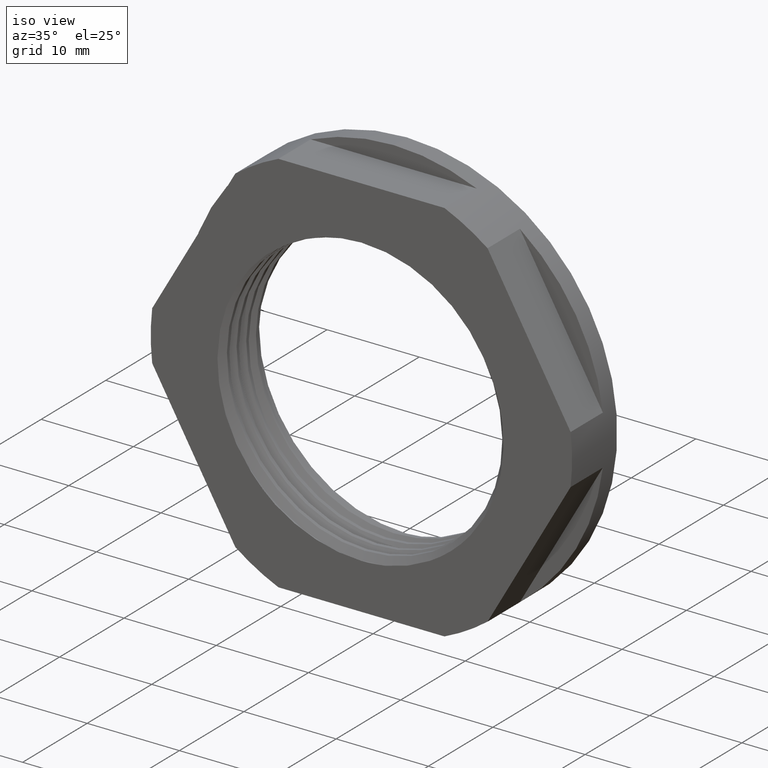
[diagram: clean part render]
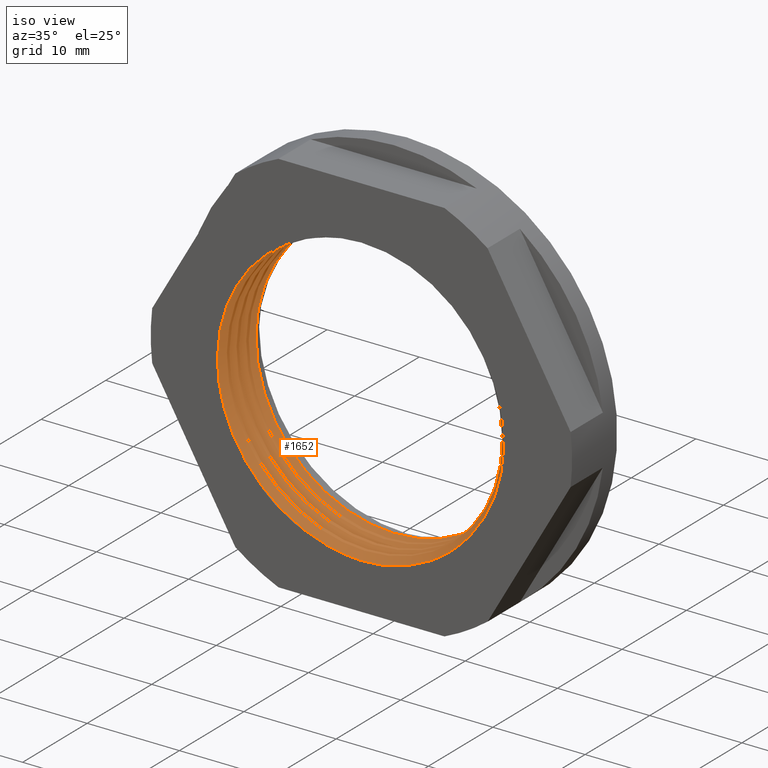
[diagram: same view with one face highlighted and labeled with its STEP entity id]
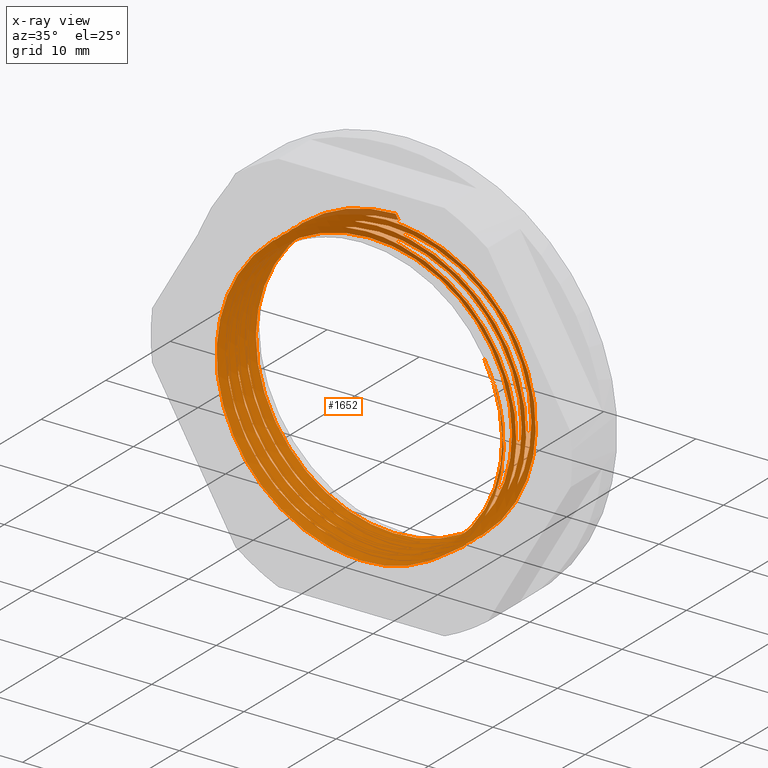
[diagram: x-ray of the same camera — body ghosted, the highlighted face saturated]
A machine part, iso view. The second image highlights one B-rep face of the part: STEP entity #1652.
The next image is the same camera in x-ray: the body ghosted, the highlighted face saturated — about 2% of this face is hidden behind the body in this view.
In plain terms, the highlighted face is a freeform B-spline surface patch.
Its self-contained STEP definition (entity closure, byte-faithful):
#3 = CARTESIAN_POINT ( 'NONE',  ( 0.0000000000000000000, -17.55188021535170200, 115.2000000000000300 ) ) ;
#7 = CARTESIAN_POINT ( 'NONE',  ( -1.861463134703979900E-015, -16.80188021535170900, 84.79999999999999700 ) ) ;
#8 = CARTESIAN_POINT ( 'NONE',  ( 1.628501233637470100E-011, -17.26376043070362000, 84.00000000000001400 ) ) ;
#11 = CARTESIAN_POINT ( 'NONE',  ( -1.861463134703979900E-015, -19.80188021535170200, 84.79999999999999700 ) ) ;
#21 = CARTESIAN_POINT ( 'NONE',  ( -1.861463134703979900E-015, -21.30188021535164800, 84.79999999999999700 ) ) ;
#24 = CARTESIAN_POINT ( 'NONE',  ( -1.959434878635765100E-015, -20.26376043070340000, 84.00000000000000000 ) ) ;
#27 = CARTESIAN_POINT ( 'NONE',  ( -1.861463134703979900E-015, -18.30188021535170200, 84.79999999999999700 ) ) ;
#34 = CARTESIAN_POINT ( 'NONE',  ( -1.959434878635765100E-015, -16.51376043070339300, 116.0000000000000000 ) ) ;
#44 = CARTESIAN_POINT ( 'NONE',  ( 0.0000000000000000000, -19.05188021535170200, 115.2000000000000300 ) ) ;
#45 = CARTESIAN_POINT ( 'NONE',  ( -1.959434878635765100E-015, -21.76376043070334600, 84.00000000000000000 ) ) ;
#46 = CARTESIAN_POINT ( 'NONE',  ( 4.653657836759944700E-016, -16.05188021535170500, 115.2000000000000300 ) ) ;
#48 = CARTESIAN_POINT ( 'NONE',  ( 0.0000000000000000000, -18.01376043070340000, 116.0000000000000000 ) ) ;
#54 = CARTESIAN_POINT ( 'NONE',  ( 0.0000000000000000000, -21.01376043070340000, 116.0000000000000000 ) ) ;
#58 = CARTESIAN_POINT ( 'NONE',  ( 2.559201226149841400, -21.80000000000000100, 84.20599831948619900 ) ) ;
#61 = CARTESIAN_POINT ( 'NONE',  ( 1.976889218764930200E-011, -18.76376043070366600, 84.00000000000000000 ) ) ;
#62 = CARTESIAN_POINT ( 'NONE',  ( 0.0000000000000000000, -19.51376043070340700, 116.0000000000000000 ) ) ;
#63 = CARTESIAN_POINT ( 'NONE',  ( 13.22892858177964300, -21.80000000000000100, 107.4856829066007000 ) ) ;
#64 = CARTESIAN_POINT ( 'NONE',  ( -13.85640646055214600, -21.26376043070410300, 108.0000000000006700 ) ) ;
#65 = CARTESIAN_POINT ( 'NONE',  ( -1.861463134703979900E-015, -19.80188021535170200, 84.79999999999999700 ) ) ;
#66 = CARTESIAN_POINT ( 'NONE',  ( 13.16358613752344900, -20.05188021535169400, 92.39999999999999100 ) ) ;
#67 = CARTESIAN_POINT ( 'NONE',  ( -18.47520861406951900, -21.38876043070409600, 100.0000000000000000 ) ) ;
#69 = CARTESIAN_POINT ( 'NONE',  ( -1.959434878635765100E-015, -16.51376043070339300, 116.0000000000000000 ) ) ;
#72 = CARTESIAN_POINT ( 'NONE',  ( 1.628501233637470100E-011, -17.26376043070362000, 84.00000000000001400 ) ) ;
#75 = CARTESIAN_POINT ( 'NONE',  ( 17.55144818336461300, -20.17688021535168000, 100.0000000000000100 ) ) ;
#76 = CARTESIAN_POINT ( 'NONE',  ( 0.0000000000000000000, -20.55188021535170200, 115.2000000000000300 ) ) ;
#77 = CARTESIAN_POINT ( 'NONE',  ( 8.775724091682306500, -19.92688021535169100, 84.80000000000002600 ) ) ;
#80 = CARTESIAN_POINT ( 'NONE',  ( -18.47520861406806200, -16.88876043070339600, 100.0000000000000100 ) ) ;
#81 = CARTESIAN_POINT ( 'NONE',  ( -9.237604307028606200, -17.13876043070355600, 83.99999999999057800 ) ) ;
#83 = CARTESIAN_POINT ( 'NONE',  ( -13.85640646055214600, -21.51376043070410300, 91.99999999999936100 ) ) ;
#87 = CARTESIAN_POINT ( 'NONE',  ( 13.16358613752347000, -20.30188021535169400, 107.5999999999999900 ) ) ;
#88 = CARTESIAN_POINT ( 'NONE',  ( 0.0000000000000000000, -20.55188021535170200, 115.2000000000000300 ) ) ;
#91 = CARTESIAN_POINT ( 'NONE',  ( -13.85640646055105800, -16.76376043070342800, 108.0000000000000400 ) ) ;
#96 = CARTESIAN_POINT ( 'NONE',  ( -9.237604307034031200, -16.63876043070340700, 116.0000000000001700 ) ) ;
#98 = CARTESIAN_POINT ( 'NONE',  ( 8.775724091682306500, -20.42688021535167300, 115.1999999999999300 ) ) ;
#100 = CARTESIAN_POINT ( 'NONE',  ( -9.237604307034759500, -21.63876043070409600, 83.99999999999874900 ) ) ;
#103 = CARTESIAN_POINT ( 'NONE',  ( -1.959434878635765100E-015, -21.76376043070334600, 84.00000000000000000 ) ) ;
#105 = CARTESIAN_POINT ( 'NONE',  ( -9.237604307034759500, -21.13876043070411700, 116.0000000000014400 ) ) ;
#110 = CARTESIAN_POINT ( 'NONE',  ( 0.0000000000000000000, -21.01376043070340000, 116.0000000000000000 ) ) ;
#111 = CARTESIAN_POINT ( 'NONE',  ( -13.85640646055105800, -17.01376043070342800, 91.99999999999998600 ) ) ;
#116 = CARTESIAN_POINT ( 'NONE',  ( 1.976889218764930200E-011, -18.76376043070366600, 84.00000000000000000 ) ) ;
#122 = CARTESIAN_POINT ( 'NONE',  ( 18.47520861406857100, -19.13876043070368400, 100.0000000000000300 ) ) ;
#129 = CARTESIAN_POINT ( 'NONE',  ( 13.85640646055143000, -19.01376043070367300, 91.99999999999977300 ) ) ;
#130 = CARTESIAN_POINT ( 'NONE',  ( 9.237604307034285300, -19.38876043070367000, 116.0000000000006300 ) ) ;
#142 = CARTESIAN_POINT ( 'NONE',  ( 9.237604307040872000, -18.88876043070386500, 84.00000000001102800 ) ) ;
#143 = CARTESIAN_POINT ( 'NONE',  ( 13.85640646055143000, -19.26376043070367700, 108.0000000000002400 ) ) ;
#144 = CARTESIAN_POINT ( 'NONE',  ( 0.0000000000000000000, -19.51376043070340700, 116.0000000000000000 ) ) ;
#150 = CARTESIAN_POINT ( 'NONE',  ( 8.775724091682313600, -16.92688021535168700, 84.79999999999996900 ) ) ;
#167 = CARTESIAN_POINT ( 'NONE',  ( -1.861463134703979900E-015, -16.80188021535170900, 84.79999999999999700 ) ) ;
#168 = CARTESIAN_POINT ( 'NONE',  ( -1.861463134703979900E-015, -21.30188021535164800, 84.79999999999999700 ) ) ;
#169 = CARTESIAN_POINT ( 'NONE',  ( 8.775724091682290500, -21.42688021535167300, 84.80000000000002600 ) ) ;
#170 = CARTESIAN_POINT ( 'NONE',  ( 13.16358613752343000, -21.55188021535163000, 92.40000000000002000 ) ) ;
#181 = CARTESIAN_POINT ( 'NONE',  ( 13.22892858177964300, -21.80000000000000100, 107.4856829066007000 ) ) ;
#182 = CARTESIAN_POINT ( 'NONE',  ( 17.50766593854031000, -21.67563296086966000, 99.92416692749495200 ) ) ;
#192 = CARTESIAN_POINT ( 'NONE',  ( 18.47520861406811900, -20.63876043070344600, 100.0000000000000300 ) ) ;
#195 = CARTESIAN_POINT ( 'NONE',  ( 9.237604307040594900, -17.38876043070466800, 84.00000000000746100 ) ) ;
#196 = CARTESIAN_POINT ( 'NONE',  ( -1.959434878635765100E-015, -20.26376043070340000, 84.00000000000000000 ) ) ;
#199 = CARTESIAN_POINT ( 'NONE',  ( -1.959434878635765100E-015, -20.26376043070340000, 84.00000000000000000 ) ) ;
#200 = CARTESIAN_POINT ( 'NONE',  ( 9.237604307034059700, -20.38876043070344900, 83.99999999999995700 ) ) ;
#202 = CARTESIAN_POINT ( 'NONE',  ( 13.85640646055275700, -17.76376043070455800, 108.0000000000010100 ) ) ;
#203 = CARTESIAN_POINT ( 'NONE',  ( -9.237604307034274600, -19.63876043070363800, 116.0000000000005800 ) ) ;
#204 = CARTESIAN_POINT ( 'NONE',  ( 0.0000000000000000000, -21.01376043070340000, 116.0000000000000000 ) ) ;
#209 = CARTESIAN_POINT ( 'NONE',  ( 0.0000000000000000000, -17.55188021535170200, 115.2000000000000300 ) ) ;
#211 = CARTESIAN_POINT ( 'NONE',  ( 17.55144818336462700, -17.17688021535168700, 100.0000000000000100 ) ) ;
#212 = CARTESIAN_POINT ( 'NONE',  ( -13.85640646055142100, -20.01376043070366600, 91.99999999999977300 ) ) ;
#213 = CARTESIAN_POINT ( 'NONE',  ( 13.16358613752348100, -17.30188021535170200, 107.6000000000000100 ) ) ;
#214 = CARTESIAN_POINT ( 'NONE',  ( -13.85640646055142100, -19.76376043070366600, 108.0000000000002400 ) ) ;
#215 = CARTESIAN_POINT ( 'NONE',  ( 13.85640646055109400, -20.51376043070344900, 91.99999999999995700 ) ) ;
#218 = CARTESIAN_POINT ( 'NONE',  ( 1.628501233637470100E-011, -17.26376043070362000, 84.00000000000001400 ) ) ;
#220 = CARTESIAN_POINT ( 'NONE',  ( -9.237604307034274600, -20.13876043070362700, 83.99999999999958800 ) ) ;
#226 = CARTESIAN_POINT ( 'NONE',  ( 9.237604307034059700, -20.88876043070342800, 116.0000000000002600 ) ) ;
#227 = CARTESIAN_POINT ( 'NONE',  ( 0.0000000000000000000, -19.51376043070340700, 116.0000000000000000 ) ) ;
#229 = CARTESIAN_POINT ( 'NONE',  ( 13.85640646055109400, -20.76376043070345300, 108.0000000000000400 ) ) ;
#230 = CARTESIAN_POINT ( 'NONE',  ( 18.47520861407033300, -17.63876043070456500, 100.0000000000000300 ) ) ;
#231 = CARTESIAN_POINT ( 'NONE',  ( 13.16358613752346200, -17.05188021535170200, 92.39999999999999100 ) ) ;
#232 = CARTESIAN_POINT ( 'NONE',  ( 8.775724091682313600, -17.42688021535169800, 115.1999999999999300 ) ) ;
#233 = CARTESIAN_POINT ( 'NONE',  ( -18.47520861406854900, -19.88876043070362300, 100.0000000000000000 ) ) ;
#235 = CARTESIAN_POINT ( 'NONE',  ( 9.237604307035146800, -17.88876043070455100, 116.0000000000021600 ) ) ;
#236 = CARTESIAN_POINT ( 'NONE',  ( 0.0000000000000000000, -18.01376043070340000, 116.0000000000000000 ) ) ;
#241 = CARTESIAN_POINT ( 'NONE',  ( 13.85640646055275700, -17.51376043070455800, 91.99999999999900500 ) ) ;
#253 = VERTEX_POINT ( 'NONE', #62 ) ;
#262 = VERTEX_POINT ( 'NONE', #24 ) ;
#267 = VERTEX_POINT ( 'NONE', #34 ) ;
#269 = VERTEX_POINT ( 'NONE', #48 ) ;
#270 = VERTEX_POINT ( 'NONE', #8 ) ;
#271 = VERTEX_POINT ( 'NONE', #45 ) ;
#273 = VERTEX_POINT ( 'NONE', #61 ) ;
#275 = VERTEX_POINT ( 'NONE', #58 ) ;
#280 = VERTEX_POINT ( 'NONE', #27 ) ;
#291 = VERTEX_POINT ( 'NONE', #44 ) ;
#292 = VERTEX_POINT ( 'NONE', #3 ) ;
#293 = VERTEX_POINT ( 'NONE', #21 ) ;
#294 = VERTEX_POINT ( 'NONE', #11 ) ;
#303 = VERTEX_POINT ( 'NONE', #63 ) ;
#304 = VERTEX_POINT ( 'NONE', #46 ) ;
#312 = VERTEX_POINT ( 'NONE', #7 ) ;
#316 = VERTEX_POINT ( 'NONE', #54 ) ;
#322 = VERTEX_POINT ( 'NONE', #88 ) ;
#343 = EDGE_LOOP ( 'NONE', ( #423, #459, #427, #489, #449, #458, #483, #473, #472, #405, #404, #411, #402, #415, #548, #537, #511, #512 ) ) ;
#402 = ORIENTED_EDGE ( 'NONE', *, *, #1569, .F. ) ;
#404 = ORIENTED_EDGE ( 'NONE', *, *, #1578, .T. ) ;
#405 = ORIENTED_EDGE ( 'NONE', *, *, #1563, .T. ) ;
#411 = ORIENTED_EDGE ( 'NONE', *, *, #1528, .F. ) ;
#415 = ORIENTED_EDGE ( 'NONE', *, *, #1512, .F. ) ;
#423 = ORIENTED_EDGE ( 'NONE', *, *, #1579, .F. ) ;
#427 = ORIENTED_EDGE ( 'NONE', *, *, #1511, .T. ) ;
#449 = ORIENTED_EDGE ( 'NONE', *, *, #1661, .T. ) ;
#458 = ORIENTED_EDGE ( 'NONE', *, *, #1523, .T. ) ;
#459 = ORIENTED_EDGE ( 'NONE', *, *, #1575, .F. ) ;
#472 = ORIENTED_EDGE ( 'NONE', *, *, #1515, .T. ) ;
#473 = ORIENTED_EDGE ( 'NONE', *, *, #1544, .T. ) ;
#483 = ORIENTED_EDGE ( 'NONE', *, *, #1542, .T. ) ;
#489 = ORIENTED_EDGE ( 'NONE', *, *, #1545, .T. ) ;
#511 = ORIENTED_EDGE ( 'NONE', *, *, #1653, .F. ) ;
#512 = ORIENTED_EDGE ( 'NONE', *, *, #1539, .F. ) ;
#537 = ORIENTED_EDGE ( 'NONE', *, *, #1557, .F. ) ;
#548 = ORIENTED_EDGE ( 'NONE', *, *, #1568, .F. ) ;
#589 =( BOUNDED_CURVE ( )  B_SPLINE_CURVE ( 2, ( #69, #96, #91, #80, #111, #81, #72 ),
 .UNSPECIFIED., .F., .F. ) 
 B_SPLINE_CURVE_WITH_KNOTS ( ( 3, 2, 2, 3 ),
 ( -0.3037914459131592600, -0.2869165530796992100, -0.2700416602462391000, -0.2531667674127790500 ),
 .UNSPECIFIED. ) 
 CURVE ( )  GEOMETRIC_REPRESENTATION_ITEM ( )  RATIONAL_B_SPLINE_CURVE ( ( 0.9999999999999998900, 0.8660254037844388200, 0.9999999999999998900, 0.8660254037844388200, 0.9999999999999998900, 0.8660254037843024800, 1.000000000000136100 ) ) 
 REPRESENTATION_ITEM ( '' )  );
#590 =( BOUNDED_CURVE ( )  B_SPLINE_CURVE ( 2, ( #670, #661, #653, #671, #663, #636, #629 ),
 .UNSPECIFIED., .F., .T. ) 
 B_SPLINE_CURVE_WITH_KNOTS ( ( 3, 2, 2, 3 ),
 ( 0.0000000000000000000, 0.01602561006831384300, 0.03205122013662811000, 0.04807683020494184900 ),
 .UNSPECIFIED. ) 
 CURVE ( )  GEOMETRIC_REPRESENTATION_ITEM ( )  RATIONAL_B_SPLINE_CURVE ( ( 1.000000000000000000, 0.8660254037844389300, 1.000000000000000000, 0.8660254037844389300, 1.000000000000000000, 0.8660254037844389300, 1.000000000000000000 ) ) 
 REPRESENTATION_ITEM ( '' )  );
#591 =( BOUNDED_CURVE ( )  B_SPLINE_CURVE ( 2, ( #637, #650, #659, #639, #652, #627, #628 ),
 .UNSPECIFIED., .F., .T. ) 
 B_SPLINE_CURVE_WITH_KNOTS ( ( 3, 2, 2, 3 ),
 ( -0.09615954372078117100, -0.08013295935106458400, -0.06410637498134799700, -0.04807979061163163100 ),
 .UNSPECIFIED. ) 
 CURVE ( )  GEOMETRIC_REPRESENTATION_ITEM ( )  RATIONAL_B_SPLINE_CURVE ( ( 1.000000000000000000, 0.8660254037844389300, 1.000000000000000000, 0.8660254037844389300, 1.000000000000000000, 0.8660254037844389300, 1.000000000000000000 ) ) 
 REPRESENTATION_ITEM ( '' )  );
#592 =( BOUNDED_CURVE ( )  B_SPLINE_CURVE ( 2, ( #1416, #1404, #1395, #1380, #1421, #1407, #1397 ),
 .UNSPECIFIED., .F., .T. ) 
 B_SPLINE_CURVE_WITH_KNOTS ( ( 3, 2, 2, 3 ),
 ( -0.1442392593274778600, -0.1282126874585788600, -0.1121861155896801700, -0.09615954372078117100 ),
 .UNSPECIFIED. ) 
 CURVE ( )  GEOMETRIC_REPRESENTATION_ITEM ( )  RATIONAL_B_SPLINE_CURVE ( ( 1.000000000000000000, 0.8660254037844389300, 1.000000000000000000, 0.8660254037844389300, 1.000000000000000000, 0.8660254037844389300, 1.000000000000000000 ) ) 
 REPRESENTATION_ITEM ( '' )  );
#593 =( BOUNDED_CURVE ( )  B_SPLINE_CURVE ( 2, ( #699, #752, #773, #759, #746, #780, #776 ),
 .UNSPECIFIED., .F., .T. ) 
 B_SPLINE_CURVE_WITH_KNOTS ( ( 3, 2, 2, 3 ),
 ( -0.2884781811331433900, -0.2724516467666388000, -0.2564251124001341600, -0.2403985780336295700 ),
 .UNSPECIFIED. ) 
 CURVE ( )  GEOMETRIC_REPRESENTATION_ITEM ( )  RATIONAL_B_SPLINE_CURVE ( ( 1.000000000000000000, 0.8660254037844389300, 1.000000000000000000, 0.8660254037844389300, 1.000000000000000000, 0.8660254037844389300, 1.000000000000000000 ) ) 
 REPRESENTATION_ITEM ( '' )  );
#595 =( BOUNDED_CURVE ( )  B_SPLINE_CURVE ( 2, ( #110, #105, #64, #67, #83, #100, #103 ),
 .UNSPECIFIED., .F., .F. ) 
 B_SPLINE_CURVE_WITH_KNOTS ( ( 3, 2, 2, 3 ),
 ( 0.0000000000000000000, 0.01686664569126410800, 0.03373329138252866000, 0.05059993707379266400 ),
 .UNSPECIFIED. ) 
 CURVE ( )  GEOMETRIC_REPRESENTATION_ITEM ( )  RATIONAL_B_SPLINE_CURVE ( ( 1.000000000000000000, 0.8660254037844390400, 1.000000000000000000, 0.8660254037844390400, 1.000000000000000000, 0.8660254037844390400, 1.000000000000000000 ) ) 
 REPRESENTATION_ITEM ( '' )  );
#600 =( BOUNDED_CURVE ( )  B_SPLINE_CURVE ( 2, ( #65, #77, #66, #75, #87, #98, #76 ),
 .UNSPECIFIED., .F., .F. ) 
 B_SPLINE_CURVE_WITH_KNOTS ( ( 3, 2, 2, 3 ),
 ( -0.04807979061163163800, -0.03205319374108792100, -0.01602659687054366900, 0.0000000000000000000 ),
 .UNSPECIFIED. ) 
 CURVE ( )  GEOMETRIC_REPRESENTATION_ITEM ( )  RATIONAL_B_SPLINE_CURVE ( ( 1.000000000000000000, 0.8660254037844389300, 1.000000000000000000, 0.8660254037844389300, 1.000000000000000000, 0.8660254037844389300, 1.000000000000000000 ) ) 
 REPRESENTATION_ITEM ( '' )  );
#602 =( BOUNDED_CURVE ( )  B_SPLINE_CURVE ( 2, ( #116, #142, #129, #122, #143, #130, #144 ),
 .UNSPECIFIED., .F., .T. ) 
 B_SPLINE_CURVE_WITH_KNOTS ( ( 3, 2, 2, 3 ),
 ( -0.1518976409736280700, -0.1350167451161299600, -0.1181358492586321600, -0.1012549534011340500 ),
 .UNSPECIFIED. ) 
 CURVE ( )  GEOMETRIC_REPRESENTATION_ITEM ( )  RATIONAL_B_SPLINE_CURVE ( ( 0.9999999999998344700, 0.8660254037846044600, 1.000000000000000000, 0.8660254037844389300, 1.000000000000000000, 0.8660254037844389300, 1.000000000000000000 ) ) 
 REPRESENTATION_ITEM ( '' )  );
#603 =( BOUNDED_CURVE ( )  B_SPLINE_CURVE ( 2, ( #199, #200, #215, #192, #229, #226, #204 ),
 .UNSPECIFIED., .F., .T. ) 
 B_SPLINE_CURVE_WITH_KNOTS ( ( 3, 2, 2, 3 ),
 ( -0.05062341931465858700, -0.03374894620977256200, -0.01687447310488596900, 0.0000000000000000000 ),
 .UNSPECIFIED. ) 
 CURVE ( )  GEOMETRIC_REPRESENTATION_ITEM ( )  RATIONAL_B_SPLINE_CURVE ( ( 1.000000000000000000, 0.8660254037844389300, 1.000000000000000000, 0.8660254037844389300, 1.000000000000000000, 0.8660254037844389300, 1.000000000000000000 ) ) 
 REPRESENTATION_ITEM ( '' )  );
#608 =( BOUNDED_CURVE ( )  B_SPLINE_CURVE ( 2, ( #667, #651, #646 ),
 .UNSPECIFIED., .F., .T. ) 
 B_SPLINE_CURVE_WITH_KNOTS ( ( 3, 3 ),
 ( 0.05059993707379265700, 0.05319810425684042000 ),
 .UNSPECIFIED. ) 
 CURVE ( )  GEOMETRIC_REPRESENTATION_ITEM ( )  RATIONAL_B_SPLINE_CURVE ( ( 1.000000000000000000, 0.9788872708691733800, 0.9644287484901171700 ) ) 
 REPRESENTATION_ITEM ( '' )  );
#610 =( BOUNDED_CURVE ( )  B_SPLINE_CURVE ( 2, ( #167, #150, #231, #211, #213, #232, #209 ),
 .UNSPECIFIED., .F., .F. ) 
 B_SPLINE_CURVE_WITH_KNOTS ( ( 3, 2, 2, 3 ),
 ( -0.2403985780336295700, -0.2243720311663367200, -0.2083454842990437900, -0.1923189374317508000 ),
 .UNSPECIFIED. ) 
 CURVE ( )  GEOMETRIC_REPRESENTATION_ITEM ( )  RATIONAL_B_SPLINE_CURVE ( ( 1.000000000000000000, 0.8660254037844389300, 1.000000000000000000, 0.8660254037844389300, 1.000000000000000000, 0.8660254037844389300, 1.000000000000000000 ) ) 
 REPRESENTATION_ITEM ( '' )  );
#611 =( BOUNDED_CURVE ( )  B_SPLINE_CURVE ( 2, ( #227, #203, #214, #233, #212, #220, #196 ),
 .UNSPECIFIED., .F., .F. ) 
 B_SPLINE_CURVE_WITH_KNOTS ( ( 3, 2, 2, 3 ),
 ( -0.1012549534011340500, -0.08437777537230881100, -0.06750059734348357000, -0.05062341931465858700 ),
 .UNSPECIFIED. ) 
 CURVE ( )  GEOMETRIC_REPRESENTATION_ITEM ( )  RATIONAL_B_SPLINE_CURVE ( ( 0.9999999999999998900, 0.8660254037844389300, 0.9999999999999998900, 0.8660254037844389300, 0.9999999999999998900, 0.8660254037844389300, 0.9999999999999998900 ) ) 
 REPRESENTATION_ITEM ( '' )  );
#612 =( BOUNDED_CURVE ( )  B_SPLINE_CURVE ( 2, ( #168, #169, #170, #182, #181 ),
 .UNSPECIFIED., .F., .F. ) 
 B_SPLINE_CURVE_WITH_KNOTS ( ( 3, 2, 3 ),
 ( 0.04807683020494184900, 0.06410934496613360200, 0.08000313358965384400 ),
 .UNSPECIFIED. ) 
 CURVE ( )  GEOMETRIC_REPRESENTATION_ITEM ( )  RATIONAL_B_SPLINE_CURVE ( ( 1.000000000000000000, 0.8660254037844389300, 1.000000000000000000, 0.8671846591199855500, 0.9977015509371661700 ) ) 
 REPRESENTATION_ITEM ( '' )  );
#613 =( BOUNDED_CURVE ( )  B_SPLINE_CURVE ( 2, ( #218, #195, #241, #230, #202, #235, #236 ),
 .UNSPECIFIED., .F., .T. ) 
 B_SPLINE_CURVE_WITH_KNOTS ( ( 3, 2, 2, 3 ),
 ( -0.2531667674127790500, -0.2362876012687717700, -0.2194084351247644300, -0.2025292689807570200 ),
 .UNSPECIFIED. ) 
 CURVE ( )  GEOMETRIC_REPRESENTATION_ITEM ( )  RATIONAL_B_SPLINE_CURVE ( ( 0.9999999999998637800, 0.8660254037845751500, 1.000000000000000000, 0.8660254037844389300, 1.000000000000000000, 0.8660254037844384900, 1.000000000000000400 ) ) 
 REPRESENTATION_ITEM ( '' )  );
#620 =( BOUNDED_CURVE ( )  B_SPLINE_CURVE ( 2, ( #1364, #1363, #1348, #1365, #1350, #1352, #1369 ),
 .UNSPECIFIED., .F., .T. ) 
 B_SPLINE_CURVE_WITH_KNOTS ( ( 3, 2, 2, 3 ),
 ( -0.2025292689807570200, -0.1856520596450472700, -0.1687748503093378100, -0.1518976409736280700 ),
 .UNSPECIFIED. ) 
 CURVE ( )  GEOMETRIC_REPRESENTATION_ITEM ( )  RATIONAL_B_SPLINE_CURVE ( ( 0.9999999999999995600, 0.8660254037844393700, 1.000000000000000000, 0.8660254037844389300, 1.000000000000000000, 0.8660254037842736200, 1.000000000000165200 ) ) 
 REPRESENTATION_ITEM ( '' )  );
#621 =( BOUNDED_SURFACE ( )  B_SPLINE_SURFACE ( 1, 2, ( 
 ( #1183, #1185, #1208, #1209, #1215, #1214, #1216, #1210, #1218, #1211, #1212, #1205, #1213, #1207, #1217, #1199, #1200, #1203, #1201, #1202, #1204, #1206, #1227, #1223, #1232, #1224, #1233, #1231, #1225, #1228, #1221, #1226, #1219, #1220, #1222, #1229, #1230, #1239, #1268, #1266, #1260, #1275, #1252, #1274, #1256, #1253, #1241, #1270, #1237, #1257, #1269, #1242, #1234, #1264, #1271, #1255, #1258, #1235, #1247, #1273, #1276 ),
 ( #1265, #1243, #1259, #1236, #1238, #1240, #1261, #1262, #1250, #1244, #1254, #1245, #1263, #1246, #1248, #1249, #1267, #1251, #1272, #1318, #1302, #1303, #1304, #1320, #1316, #1321, #1299, #1328, #1309, #1298, #1287, #1312, #1295, #1322, #1306, #1317, #1281, #1313, #1308, #1297, #1331, #1300, #1286, #1323, #1290, #1329, #1310, #1285, #1301, #1282, #1293, #1324, #1307, #1279, #1332, #1315, #1284, #1325, #1319, #1314, #1330 ) ),
 .UNSPECIFIED., .F., .F., .T. ) 
 B_SPLINE_SURFACE_WITH_KNOTS ( ( 2, 2 ),
 ( 3, 2, 2, 2, 2, 2, 2, 2, 2, 2, 2, 2, 2, 2, 2, 2, 2, 2, 2, 2, 2, 2, 2, 2, 2, 2, 2, 2, 2, 2, 3 ),
 ( 0.0000000000000000000, 1.000000000000000000 ),
 ( 0.0000000000000000000, 0.03333333333333334700, 0.06666666666666669300, 0.1000000000000000100, 0.1333333333333331900, 0.1666666666666665200, 0.2000000000000000100, 0.2333333333333335000, 0.2666666666666665000, 0.2999999999999999900, 0.3333333333333335400, 0.3666666666666664700, 0.4000000000000000200, 0.4333333333333335100, 0.4666666666666670100, 0.5000000000000000000, 0.5333333333333329900, 0.5666666666666671000, 0.5999999999999999800, 0.6333333333333330800, 0.6666666666666670700, 0.6999999999999999600, 0.7333333333333330600, 0.7666666666666670500, 0.8000000000000000400, 0.8333333333333330400, 0.8666666666666670300, 0.9000000000000000200, 0.9333333333333330200, 0.9666666666666670100, 1.000000000000000000 ),
 .UNSPECIFIED. ) 
 GEOMETRIC_REPRESENTATION_ITEM ( )  RATIONAL_B_SPLINE_SURFACE ( (
 ( 1.000000000000000000, 0.8660254037844389300, 1.000000000000000000, 0.8660254037844389300, 1.000000000000000000, 0.8660254037844389300, 1.000000000000000000, 0.8660254037844389300, 1.000000000000000000, 0.8660254037844389300, 1.000000000000000000, 0.8660254037844389300, 1.000000000000000000, 0.8660254037844389300, 1.000000000000000000, 0.8660254037844389300, 1.000000000000000000, 0.8660254037844389300, 1.000000000000000000, 0.8660254037844389300, 1.000000000000000000, 0.8660254037844389300, 1.000000000000000000, 0.8660254037844389300, 1.000000000000000000, 0.8660254037844389300, 1.000000000000000000, 0.8660254037844389300, 1.000000000000000000, 0.8660254037844389300, 1.000000000000000000, 0.8660254037844389300, 1.000000000000000000, 0.8660254037844389300, 1.000000000000000000, 0.8660254037844389300, 1.000000000000000000, 0.8660254037844389300, 1.000000000000000000, 0.8660254037844389300, 1.000000000000000000, 0.8660254037844389300, 1.000000000000000000, 0.8660254037844389300, 1.000000000000000000, 0.8660254037844389300, 1.000000000000000000, 0.8660254037844389300, 1.000000000000000000, 0.8660254037844389300, 1.000000000000000000, 0.8660254037844389300, 1.000000000000000000, 0.8660254037844389300, 1.000000000000000000, 0.8660254037844389300, 1.000000000000000000, 0.8660254037844389300, 1.000000000000000000, 0.8660254037844389300, 1.000000000000000000),
 ( 1.000000000000000000, 0.8660254037844389300, 1.000000000000000000, 0.8660254037844389300, 1.000000000000000000, 0.8660254037844389300, 1.000000000000000000, 0.8660254037844389300, 1.000000000000000000, 0.8660254037844389300, 1.000000000000000000, 0.8660254037844389300, 1.000000000000000000, 0.8660254037844389300, 1.000000000000000000, 0.8660254037844389300, 1.000000000000000000, 0.8660254037844389300, 1.000000000000000000, 0.8660254037844389300, 1.000000000000000000, 0.8660254037844389300, 1.000000000000000000, 0.8660254037844389300, 1.000000000000000000, 0.8660254037844389300, 1.000000000000000000, 0.8660254037844389300, 1.000000000000000000, 0.8660254037844389300, 1.000000000000000000, 0.8660254037844389300, 1.000000000000000000, 0.8660254037844389300, 1.000000000000000000, 0.8660254037844389300, 1.000000000000000000, 0.8660254037844389300, 1.000000000000000000, 0.8660254037844389300, 1.000000000000000000, 0.8660254037844389300, 1.000000000000000000, 0.8660254037844389300, 1.000000000000000000, 0.8660254037844389300, 1.000000000000000000, 0.8660254037844389300, 1.000000000000000000, 0.8660254037844389300, 1.000000000000000000, 0.8660254037844389300, 1.000000000000000000, 0.8660254037844389300, 1.000000000000000000, 0.8660254037844389300, 1.000000000000000000, 0.8660254037844389300, 1.000000000000000000, 0.8660254037844389300, 1.000000000000000000) ) ) 
 REPRESENTATION_ITEM ( '' )  SURFACE ( )  );
#623 =( BOUNDED_CURVE ( )  B_SPLINE_CURVE ( 2, ( #1326, #1291, #1296, #1292, #1305, #1311, #1327 ),
 .UNSPECIFIED., .F., .T. ) 
 B_SPLINE_CURVE_WITH_KNOTS ( ( 3, 2, 2, 3 ),
 ( -0.1923189374317508000, -0.1762923780636597400, -0.1602658186955689100, -0.1442392593274778600 ),
 .UNSPECIFIED. ) 
 CURVE ( )  GEOMETRIC_REPRESENTATION_ITEM ( )  RATIONAL_B_SPLINE_CURVE ( ( 1.000000000000000000, 0.8660254037844389300, 1.000000000000000000, 0.8660254037844389300, 1.000000000000000000, 0.8660254037844389300, 1.000000000000000000 ) ) 
 REPRESENTATION_ITEM ( '' )  );
#627 = CARTESIAN_POINT ( 'NONE',  ( -8.775724091682308300, -19.67688021535164800, 84.79999999999998300 ) ) ;
#628 = CARTESIAN_POINT ( 'NONE',  ( -1.861463134703979900E-015, -19.80188021535170200, 84.79999999999999700 ) ) ;
#629 = CARTESIAN_POINT ( 'NONE',  ( -1.861463134703979900E-015, -21.30188021535164800, 84.79999999999999700 ) ) ;
#636 = CARTESIAN_POINT ( 'NONE',  ( -8.775724091682304700, -21.17688021535169400, 84.80000000000002600 ) ) ;
#637 = CARTESIAN_POINT ( 'NONE',  ( 0.0000000000000000000, -19.05188021535170200, 115.2000000000000300 ) ) ;
#639 = CARTESIAN_POINT ( 'NONE',  ( -17.55144818336461700, -19.42688021535165900, 100.0000000000000100 ) ) ;
#646 = CARTESIAN_POINT ( 'NONE',  ( 2.559201226149841400, -21.80000000000000100, 84.20599831948619900 ) ) ;
#650 = CARTESIAN_POINT ( 'NONE',  ( -8.775724091682308300, -19.17688021535167700, 115.1999999999999300 ) ) ;
#651 = CARTESIAN_POINT ( 'NONE',  ( 1.287891345980686700, -21.78118772168745900, 83.99999999999866400 ) ) ;
#652 = CARTESIAN_POINT ( 'NONE',  ( -13.16358613752345300, -19.55188021535169400, 92.40000000000000600 ) ) ;
#653 = CARTESIAN_POINT ( 'NONE',  ( -13.16358613752344700, -20.80188021535164100, 107.5999999999999900 ) ) ;
#659 = CARTESIAN_POINT ( 'NONE',  ( -13.16358613752345300, -19.30188021535169800, 107.5999999999999900 ) ) ;
#661 = CARTESIAN_POINT ( 'NONE',  ( -8.775724091682304700, -20.67688021535167000, 115.1999999999999300 ) ) ;
#663 = CARTESIAN_POINT ( 'NONE',  ( -13.16358613752344700, -21.05188021535164100, 92.39999999999999100 ) ) ;
#667 = CARTESIAN_POINT ( 'NONE',  ( -1.959434878635765100E-015, -21.76376043070334600, 84.00000000000000000 ) ) ;
#670 = CARTESIAN_POINT ( 'NONE',  ( 0.0000000000000000000, -20.55188021535170200, 115.2000000000000300 ) ) ;
#671 = CARTESIAN_POINT ( 'NONE',  ( -17.55144818336460900, -20.92688021535164100, 100.0000000000000100 ) ) ;
#673 = CARTESIAN_POINT ( 'NONE',  ( 5.847603803097159800, -21.79999999999999400, 85.20044395631022400 ) ) ;
#674 = CARTESIAN_POINT ( 'NONE',  ( 13.41299653549577200, -21.79999999999999700, 91.95798388505028200 ) ) ;
#678 = CARTESIAN_POINT ( 'NONE',  ( 14.89665238248255400, -21.80000000000000400, 95.39385679611643800 ) ) ;
#679 = CARTESIAN_POINT ( 'NONE',  ( 15.36042174715778000, -21.80000000000001500, 98.18561557258649900 ) ) ;
#680 = CARTESIAN_POINT ( 'NONE',  ( 15.36629890072887500, -21.79999999999999000, 100.9886665220129100 ) ) ;
#681 = CARTESIAN_POINT ( 'NONE',  ( 15.29605402779440800, -21.79999999999999400, 101.6123425591068400 ) ) ;
#682 = CARTESIAN_POINT ( 'NONE',  ( 15.07744996291076100, -21.79999999999999700, 102.8561830221211600 ) ) ;
#684 = CARTESIAN_POINT ( 'NONE',  ( 12.39680812052302800, -21.80000000000000400, 90.37424355381084200 ) ) ;
#685 = CARTESIAN_POINT ( 'NONE',  ( 14.51178307663089500, -21.80000000000000800, 94.20956259781840500 ) ) ;
#686 = CARTESIAN_POINT ( 'NONE',  ( 2.559201226149841400, -21.80000000000000100, 84.20599831948619900 ) ) ;
#687 = CARTESIAN_POINT ( 'NONE',  ( 4.670157131283526800, -21.80000000000001500, 84.75264942446341400 ) ) ;
#688 = CARTESIAN_POINT ( 'NONE',  ( 11.20214069272431000, -21.80000000000000400, 88.93724744723621700 ) ) ;
#689 = CARTESIAN_POINT ( 'NONE',  ( 13.71272284038241400, -21.80000000000000100, 92.51197799446616400 ) ) ;
#693 = LINE ( 'NONE', #709, #1782 ) ;
#697 = CARTESIAN_POINT ( 'NONE',  ( 10.31005880709387600, -21.79999999999999700, 88.05714142112022100 ) ) ;
#699 = CARTESIAN_POINT ( 'NONE',  ( 4.653657836759944700E-016, -16.05188021535170500, 115.2000000000000300 ) ) ;
#700 = CARTESIAN_POINT ( 'NONE',  ( 3.171000923575068700, -21.80000000000000800, 84.32108247000356000 ) ) ;
#703 = DIRECTION ( 'NONE',  ( 0.0000000000000000000, 0.4999999999999806800, -0.8660254037844497000 ) ) ;
#704 = CARTESIAN_POINT ( 'NONE',  ( 4.966541643323145300, -21.79999999999999400, 84.85530378777510000 ) ) ;
#706 = CARTESIAN_POINT ( 'NONE',  ( 8.346612702950521300, -21.80000000000000400, 86.48700167522177700 ) ) ;
#707 = CARTESIAN_POINT ( 'NONE',  ( 9.832289783468805700, -21.79999999999999400, 87.63888032522697800 ) ) ;
#709 = CARTESIAN_POINT ( 'NONE',  ( 0.0000000000000000000, -16.28282032302755100, 115.6000000000000100 ) ) ;
#710 = CARTESIAN_POINT ( 'NONE',  ( 11.61928801169434600, -21.80000000000000100, 89.40083283524437300 ) ) ;
#711 = CARTESIAN_POINT ( 'NONE',  ( 12.75718224016328200, -21.79999999999999400, 90.88406780133006200 ) ) ;
#712 = CARTESIAN_POINT ( 'NONE',  ( 3.775252529711438300, -21.80000000000001100, 84.47195218231202300 ) ) ;
#713 = CARTESIAN_POINT ( 'NONE',  ( 13.85339035278449600, -21.79999999999999700, 92.79224502548328200 ) ) ;
#717 = CARTESIAN_POINT ( 'NONE',  ( 15.19668375340737400, -21.79999999999999700, 96.93860792706384200 ) ) ;
#718 = CARTESIAN_POINT ( 'NONE',  ( 15.24747889580607600, -21.80000000000001100, 97.25116820312305800 ) ) ;
#719 = CARTESIAN_POINT ( 'NONE',  ( 15.32922893976606500, -21.80000000000000400, 97.87413876069337000 ) ) ;
#720 = CARTESIAN_POINT ( 'NONE',  ( 15.42548582566163000, -21.80000000000001500, 99.12002107307483800 ) ) ;
#721 = CARTESIAN_POINT ( 'NONE',  ( 15.43094554515690000, -21.79999999999998600, 99.74292491636849400 ) ) ;
#722 = CARTESIAN_POINT ( 'NONE',  ( 14.93117587081897200, -21.80000000000001100, 103.4650878704317000 ) ) ;
#724 = CARTESIAN_POINT ( 'NONE',  ( 5.555389094424178600, -21.79999999999998600, 85.07920472357561400 ) ) ;
#725 = CARTESIAN_POINT ( 'NONE',  ( 7.279047507049273900, -21.79999999999999000, 85.84487963448425800 ) ) ;
#726 = CARTESIAN_POINT ( 'NONE',  ( 13.25411555224310700, -21.79999999999999700, 91.68433683334349400 ) ) ;
#728 = CARTESIAN_POINT ( 'NONE',  ( 14.34998933399079300, -21.79999999999999700, 105.2416855048599200 ) ) ;
#736 = CARTESIAN_POINT ( 'NONE',  ( 13.54484013030601400, -21.79999999999999700, 106.9394409011636500 ) ) ;
#737 = CARTESIAN_POINT ( 'NONE',  ( 13.22892858177964300, -21.80000000000000100, 107.4856829066007000 ) ) ;
#745 = CARTESIAN_POINT ( 'NONE',  ( 14.56744977025291900, -21.80000000000000400, 104.6578405952305700 ) ) ;
#746 = CARTESIAN_POINT ( 'NONE',  ( -13.16358613752347000, -16.55188021535170900, 92.39999999999997700 ) ) ;
#752 = CARTESIAN_POINT ( 'NONE',  ( -8.775724091682320700, -16.17688021535169100, 115.1999999999999300 ) ) ;
#759 = CARTESIAN_POINT ( 'NONE',  ( -17.55144818336464100, -16.42688021535170200, 100.0000000000000100 ) ) ;
#763 = CARTESIAN_POINT ( 'NONE',  ( 13.83442390802660800, -21.80000000000000100, 106.3809857841341700 ) ) ;
#765 = CARTESIAN_POINT ( 'NONE',  ( 13.97005180340217700, -21.80000000000000100, 106.0985321979665300 ) ) ;
#766 = CARTESIAN_POINT ( 'NONE',  ( 13.39046188444629400, -21.79999999999999700, 107.2160360834838100 ) ) ;
#773 = CARTESIAN_POINT ( 'NONE',  ( -13.16358613752347000, -16.30188021535170900, 107.6000000000000100 ) ) ;
#776 = CARTESIAN_POINT ( 'NONE',  ( -1.861463134703979900E-015, -16.80188021535170900, 84.79999999999999700 ) ) ;
#780 = CARTESIAN_POINT ( 'NONE',  ( -8.775724091682320700, -16.67688021535168700, 84.79999999999996900 ) ) ;
#1182 = FACE_OUTER_BOUND ( 'NONE', #343, .T. ) ;
#1183 = CARTESIAN_POINT ( 'NONE',  ( 0.0000000000000000000, -16.51376043070340000, 116.0000000000000000 ) ) ;
#1185 = CARTESIAN_POINT ( 'NONE',  ( -9.237604307034009900, -16.63876043070338200, 116.0000000000001600 ) ) ;
#1199 = CARTESIAN_POINT ( 'NONE',  ( -18.47520861406802000, -18.38876043070337100, 100.0000000000000100 ) ) ;
#1200 = CARTESIAN_POINT ( 'NONE',  ( -13.85640646055101900, -18.51376043070340000, 92.00000000000000000 ) ) ;
#1201 = CARTESIAN_POINT ( 'NONE',  ( -1.959434878635765100E-015, -18.76376043070339600, 84.00000000000000000 ) ) ;
#1202 = CARTESIAN_POINT ( 'NONE',  ( 9.237604307034009900, -18.88876043070341000, 84.00000000000004300 ) ) ;
#1203 = CARTESIAN_POINT ( 'NONE',  ( -9.237604307034009900, -18.63876043070336400, 84.00000000000004300 ) ) ;
#1204 = CARTESIAN_POINT ( 'NONE',  ( 13.85640646055101900, -19.01376043070339600, 92.00000000000000000 ) ) ;
#1205 = CARTESIAN_POINT ( 'NONE',  ( 9.237604307034009900, -17.88876043070339300, 116.0000000000001600 ) ) ;
#1206 = CARTESIAN_POINT ( 'NONE',  ( 18.47520861406802000, -19.13876043070340300, 100.0000000000000100 ) ) ;
#1207 = CARTESIAN_POINT ( 'NONE',  ( -9.237604307034009900, -18.13876043070338200, 116.0000000000001600 ) ) ;
#1208 = CARTESIAN_POINT ( 'NONE',  ( -13.85640646055101900, -16.76376043070340000, 108.0000000000000000 ) ) ;
#1209 = CARTESIAN_POINT ( 'NONE',  ( -18.47520861406802000, -16.88876043070337100, 100.0000000000000100 ) ) ;
#1210 = CARTESIAN_POINT ( 'NONE',  ( 9.237604307034009900, -17.38876043070336100, 84.00000000000004300 ) ) ;
#1211 = CARTESIAN_POINT ( 'NONE',  ( 18.47520861406802000, -17.63876043070340700, 100.0000000000000100 ) ) ;
#1212 = CARTESIAN_POINT ( 'NONE',  ( 13.85640646055101900, -17.76376043070340000, 108.0000000000000000 ) ) ;
#1213 = CARTESIAN_POINT ( 'NONE',  ( 0.0000000000000000000, -18.01376043070340000, 116.0000000000000000 ) ) ;
#1214 = CARTESIAN_POINT ( 'NONE',  ( -9.237604307034009900, -17.13876043070338200, 84.00000000000004300 ) ) ;
#1215 = CARTESIAN_POINT ( 'NONE',  ( -13.85640646055101900, -17.01376043070340000, 92.00000000000000000 ) ) ;
#1216 = CARTESIAN_POINT ( 'NONE',  ( -1.959434878635765100E-015, -17.26376043070340000, 84.00000000000000000 ) ) ;
#1217 = CARTESIAN_POINT ( 'NONE',  ( -13.85640646055101900, -18.26376043070340000, 108.0000000000000000 ) ) ;
#1218 = CARTESIAN_POINT ( 'NONE',  ( 13.85640646055101900, -17.51376043070340000, 92.00000000000000000 ) ) ;
#1219 = CARTESIAN_POINT ( 'NONE',  ( 13.85640646055101900, -20.51376043070340000, 92.00000000000000000 ) ) ;
#1220 = CARTESIAN_POINT ( 'NONE',  ( 18.47520861406802000, -20.63876043070340000, 100.0000000000000100 ) ) ;
#1221 = CARTESIAN_POINT ( 'NONE',  ( -1.959434878635765100E-015, -20.26376043070340000, 84.00000000000000000 ) ) ;
#1222 = CARTESIAN_POINT ( 'NONE',  ( 13.85640646055101900, -20.76376043070340000, 108.0000000000000000 ) ) ;
#1223 = CARTESIAN_POINT ( 'NONE',  ( 9.237604307034009900, -19.38876043070339300, 116.0000000000001600 ) ) ;
#1224 = CARTESIAN_POINT ( 'NONE',  ( -9.237604307034009900, -19.63876043070337100, 116.0000000000001600 ) ) ;
#1225 = CARTESIAN_POINT ( 'NONE',  ( -13.85640646055101900, -20.01376043070340000, 92.00000000000000000 ) ) ;
#1226 = CARTESIAN_POINT ( 'NONE',  ( 9.237604307034009900, -20.38876043070340000, 84.00000000000004300 ) ) ;
#1227 = CARTESIAN_POINT ( 'NONE',  ( 13.85640646055101900, -19.26376043070340000, 108.0000000000000000 ) ) ;
#1228 = CARTESIAN_POINT ( 'NONE',  ( -9.237604307034009900, -20.13876043070336400, 84.00000000000004300 ) ) ;
#1229 = CARTESIAN_POINT ( 'NONE',  ( 9.237604307034009900, -20.88876043070337500, 116.0000000000001600 ) ) ;
#1230 = CARTESIAN_POINT ( 'NONE',  ( 0.0000000000000000000, -21.01376043070340000, 116.0000000000000000 ) ) ;
#1231 = CARTESIAN_POINT ( 'NONE',  ( -18.47520861406802000, -19.88876043070336400, 100.0000000000000100 ) ) ;
#1232 = CARTESIAN_POINT ( 'NONE',  ( 0.0000000000000000000, -19.51376043070340700, 116.0000000000000000 ) ) ;
#1233 = CARTESIAN_POINT ( 'NONE',  ( -13.85640646055101900, -19.76376043070340000, 108.0000000000000000 ) ) ;
#1234 = CARTESIAN_POINT ( 'NONE',  ( -13.85640646055101900, -23.01376043070335000, 92.00000000000000000 ) ) ;
#1235 = CARTESIAN_POINT ( 'NONE',  ( 18.47520861406802000, -23.63876043070336400, 100.0000000000000100 ) ) ;
#1236 = CARTESIAN_POINT ( 'NONE',  ( -17.55144818336462400, -16.42688021535169800, 100.0000000000000100 ) ) ;
#1237 = CARTESIAN_POINT ( 'NONE',  ( 0.0000000000000000000, -22.51376043070335000, 116.0000000000000000 ) ) ;
#1238 = CARTESIAN_POINT ( 'NONE',  ( -13.16358613752346000, -16.55188021535170200, 92.39999999999999100 ) ) ;
#1239 = CARTESIAN_POINT ( 'NONE',  ( -9.237604307034009900, -21.13876043070336400, 116.0000000000001600 ) ) ;
#1240 = CARTESIAN_POINT ( 'NONE',  ( -8.775724091682311800, -16.67688021535167700, 84.79999999999998300 ) ) ;
#1241 = CARTESIAN_POINT ( 'NONE',  ( 13.85640646055101900, -22.26376043070335700, 108.0000000000000000 ) ) ;
#1242 = CARTESIAN_POINT ( 'NONE',  ( -18.47520861406802000, -22.88876043070335300, 100.0000000000000100 ) ) ;
#1243 = CARTESIAN_POINT ( 'NONE',  ( -8.775724091682311800, -16.17688021535168700, 115.1999999999999300 ) ) ;
#1244 = CARTESIAN_POINT ( 'NONE',  ( 17.55144818336462400, -17.17688021535168400, 100.0000000000000100 ) ) ;
#1245 = CARTESIAN_POINT ( 'NONE',  ( 8.775724091682311800, -17.42688021535169400, 115.1999999999999300 ) ) ;
#1246 = CARTESIAN_POINT ( 'NONE',  ( -8.775724091682311800, -17.67688021535168000, 115.1999999999999300 ) ) ;
#1247 = CARTESIAN_POINT ( 'NONE',  ( 13.85640646055101900, -23.76376043070335000, 108.0000000000000000 ) ) ;
#1248 = CARTESIAN_POINT ( 'NONE',  ( -13.16358613752346000, -17.80188021535170200, 107.5999999999999900 ) ) ;
#1249 = CARTESIAN_POINT ( 'NONE',  ( -17.55144818336462400, -17.92688021535167000, 100.0000000000000100 ) ) ;
#1250 = CARTESIAN_POINT ( 'NONE',  ( 13.16358613752346000, -17.05188021535170200, 92.39999999999999100 ) ) ;
#1251 = CARTESIAN_POINT ( 'NONE',  ( -8.775724091682311800, -18.17688021535165900, 84.79999999999998300 ) ) ;
#1252 = CARTESIAN_POINT ( 'NONE',  ( -1.959434878635765100E-015, -21.76376043070334600, 84.00000000000000000 ) ) ;
#1253 = CARTESIAN_POINT ( 'NONE',  ( 18.47520861406802000, -22.13876043070338500, 100.0000000000000100 ) ) ;
#1254 = CARTESIAN_POINT ( 'NONE',  ( 13.16358613752347900, -17.30188021535170200, 107.5999999999999900 ) ) ;
#1255 = CARTESIAN_POINT ( 'NONE',  ( 9.237604307034009900, -23.38876043070338900, 84.00000000000004300 ) ) ;
#1256 = CARTESIAN_POINT ( 'NONE',  ( 13.85640646055101900, -22.01376043070335700, 92.00000000000000000 ) ) ;
#1257 = CARTESIAN_POINT ( 'NONE',  ( -9.237604307034009900, -22.63876043070335300, 116.0000000000001600 ) ) ;
#1258 = CARTESIAN_POINT ( 'NONE',  ( 13.85640646055101900, -23.51376043070335000, 92.00000000000000000 ) ) ;
#1259 = CARTESIAN_POINT ( 'NONE',  ( -13.16358613752346000, -16.30188021535170200, 107.5999999999999900 ) ) ;
#1260 = CARTESIAN_POINT ( 'NONE',  ( -13.85640646055101900, -21.51376043070335000, 92.00000000000000000 ) ) ;
#1261 = CARTESIAN_POINT ( 'NONE',  ( -1.861463134703979900E-015, -16.80188021535170900, 84.79999999999999700 ) ) ;
#1262 = CARTESIAN_POINT ( 'NONE',  ( 8.775724091682311800, -16.92688021535168700, 84.79999999999998300 ) ) ;
#1263 = CARTESIAN_POINT ( 'NONE',  ( 0.0000000000000000000, -17.55188021535170200, 115.2000000000000300 ) ) ;
#1264 = CARTESIAN_POINT ( 'NONE',  ( -9.237604307034009900, -23.13876043070333900, 84.00000000000004300 ) ) ;
#1265 = CARTESIAN_POINT ( 'NONE',  ( 0.0000000000000000000, -16.05188021535170200, 115.2000000000000300 ) ) ;
#1266 = CARTESIAN_POINT ( 'NONE',  ( -18.47520861406802000, -21.38876043070335300, 100.0000000000000100 ) ) ;
#1267 = CARTESIAN_POINT ( 'NONE',  ( -13.16358613752346000, -18.05188021535170200, 92.39999999999999100 ) ) ;
#1268 = CARTESIAN_POINT ( 'NONE',  ( -13.85640646055101900, -21.26376043070335000, 108.0000000000000000 ) ) ;
#1269 = CARTESIAN_POINT ( 'NONE',  ( -13.85640646055101900, -22.76376043070335000, 108.0000000000000000 ) ) ;
#1270 = CARTESIAN_POINT ( 'NONE',  ( 9.237604307034009900, -22.38876043070336400, 116.0000000000001600 ) ) ;
#1271 = CARTESIAN_POINT ( 'NONE',  ( -1.959434878635765100E-015, -23.26376043070335000, 84.00000000000000000 ) ) ;
#1272 = CARTESIAN_POINT ( 'NONE',  ( -1.861463134703979900E-015, -18.30188021535170200, 84.79999999999999700 ) ) ;
#1273 = CARTESIAN_POINT ( 'NONE',  ( 9.237604307034009900, -23.88876043070335700, 116.0000000000001600 ) ) ;
#1274 = CARTESIAN_POINT ( 'NONE',  ( 9.237604307034009900, -21.88876043070339600, 84.00000000000004300 ) ) ;
#1275 = CARTESIAN_POINT ( 'NONE',  ( -9.237604307034009900, -21.63876043070334300, 84.00000000000004300 ) ) ;
#1276 = CARTESIAN_POINT ( 'NONE',  ( 0.0000000000000000000, -24.01376043070335000, 116.0000000000000000 ) ) ;
#1279 = CARTESIAN_POINT ( 'NONE',  ( -8.775724091682311800, -22.67688021535169100, 84.79999999999998300 ) ) ;
#1281 = CARTESIAN_POINT ( 'NONE',  ( 0.0000000000000000000, -20.55188021535170200, 115.2000000000000300 ) ) ;
#1282 = CARTESIAN_POINT ( 'NONE',  ( -8.775724091682311800, -22.17688021535166600, 115.1999999999999300 ) ) ;
#1284 = CARTESIAN_POINT ( 'NONE',  ( 13.16358613752346000, -23.05188021535165200, 92.39999999999999100 ) ) ;
#1285 = CARTESIAN_POINT ( 'NONE',  ( 8.775724091682311800, -21.92688021535167000, 115.1999999999999300 ) ) ;
#1286 = CARTESIAN_POINT ( 'NONE',  ( -1.861463134703979900E-015, -21.30188021535164800, 84.79999999999999700 ) ) ;
#1287 = CARTESIAN_POINT ( 'NONE',  ( -1.861463134703979900E-015, -19.80188021535170200, 84.79999999999999700 ) ) ;
#1290 = CARTESIAN_POINT ( 'NONE',  ( 13.16358613752346000, -21.55188021535165200, 92.39999999999999100 ) ) ;
#1291 = CARTESIAN_POINT ( 'NONE',  ( -8.775724091682313600, -17.67688021535168400, 115.1999999999999300 ) ) ;
#1292 = CARTESIAN_POINT ( 'NONE',  ( -17.55144818336462700, -17.92688021535167000, 100.0000000000000100 ) ) ;
#1293 = CARTESIAN_POINT ( 'NONE',  ( -13.16358613752346000, -22.30188021535164800, 107.5999999999999900 ) ) ;
#1295 = CARTESIAN_POINT ( 'NONE',  ( 13.16358613752346000, -20.05188021535170200, 92.39999999999999100 ) ) ;
#1296 = CARTESIAN_POINT ( 'NONE',  ( -13.16358613752346000, -17.80188021535170200, 107.5999999999999900 ) ) ;
#1297 = CARTESIAN_POINT ( 'NONE',  ( -17.55144818336462400, -20.92688021535165200, 100.0000000000000100 ) ) ;
#1298 = CARTESIAN_POINT ( 'NONE',  ( -8.775724091682311800, -19.67688021535164800, 84.79999999999998300 ) ) ;
#1299 = CARTESIAN_POINT ( 'NONE',  ( -13.16358613752346000, -19.30188021535170200, 107.5999999999999900 ) ) ;
#1300 = CARTESIAN_POINT ( 'NONE',  ( -8.775724091682311800, -21.17688021535169800, 84.79999999999998300 ) ) ;
#1301 = CARTESIAN_POINT ( 'NONE',  ( 0.0000000000000000000, -22.05188021535164800, 115.2000000000000300 ) ) ;
#1302 = CARTESIAN_POINT ( 'NONE',  ( 13.16358613752346000, -18.55188021535170200, 92.39999999999999100 ) ) ;
#1303 = CARTESIAN_POINT ( 'NONE',  ( 17.55144818336462400, -18.67688021535169100, 100.0000000000000100 ) ) ;
#1304 = CARTESIAN_POINT ( 'NONE',  ( 13.16358613752347900, -18.80188021535170200, 107.5999999999999900 ) ) ;
#1305 = CARTESIAN_POINT ( 'NONE',  ( -13.16358613752346000, -18.05188021535170200, 92.39999999999999100 ) ) ;
#1306 = CARTESIAN_POINT ( 'NONE',  ( 13.16358613752347900, -20.30188021535170200, 107.5999999999999900 ) ) ;
#1307 = CARTESIAN_POINT ( 'NONE',  ( -13.16358613752346000, -22.55188021535164800, 92.39999999999999100 ) ) ;
#1308 = CARTESIAN_POINT ( 'NONE',  ( -13.16358613752346000, -20.80188021535164800, 107.5999999999999900 ) ) ;
#1309 = CARTESIAN_POINT ( 'NONE',  ( -13.16358613752346000, -19.55188021535170200, 92.39999999999999100 ) ) ;
#1310 = CARTESIAN_POINT ( 'NONE',  ( 13.16358613752347900, -21.80188021535164800, 107.5999999999999900 ) ) ;
#1311 = CARTESIAN_POINT ( 'NONE',  ( -8.775724091682313600, -18.17688021535165900, 84.79999999999998300 ) ) ;
#1312 = CARTESIAN_POINT ( 'NONE',  ( 8.775724091682311800, -19.92688021535169400, 84.79999999999998300 ) ) ;
#1313 = CARTESIAN_POINT ( 'NONE',  ( -8.775724091682311800, -20.67688021535167300, 115.1999999999999300 ) ) ;
#1314 = CARTESIAN_POINT ( 'NONE',  ( 8.775724091682311800, -23.42688021535166200, 115.1999999999999300 ) ) ;
#1315 = CARTESIAN_POINT ( 'NONE',  ( 8.775724091682311800, -22.92688021535167700, 84.79999999999998300 ) ) ;
#1316 = CARTESIAN_POINT ( 'NONE',  ( 0.0000000000000000000, -19.05188021535170200, 115.2000000000000300 ) ) ;
#1317 = CARTESIAN_POINT ( 'NONE',  ( 8.775724091682311800, -20.42688021535167700, 115.1999999999999300 ) ) ;
#1318 = CARTESIAN_POINT ( 'NONE',  ( 8.775724091682311800, -18.42688021535170500, 84.79999999999998300 ) ) ;
#1319 = CARTESIAN_POINT ( 'NONE',  ( 13.16358613752347900, -23.30188021535165900, 107.5999999999999900 ) ) ;
#1320 = CARTESIAN_POINT ( 'NONE',  ( 8.775724091682311800, -18.92688021535168700, 115.1999999999999300 ) ) ;
#1321 = CARTESIAN_POINT ( 'NONE',  ( -8.775724091682311800, -19.17688021535167700, 115.1999999999999300 ) ) ;
#1322 = CARTESIAN_POINT ( 'NONE',  ( 17.55144818336462400, -20.17688021535168400, 100.0000000000000100 ) ) ;
#1323 = CARTESIAN_POINT ( 'NONE',  ( 8.775724091682311800, -21.42688021535168700, 84.79999999999998300 ) ) ;
#1324 = CARTESIAN_POINT ( 'NONE',  ( -17.55144818336462400, -22.42688021535164100, 100.0000000000000100 ) ) ;
#1325 = CARTESIAN_POINT ( 'NONE',  ( 17.55144818336462400, -23.17688021535167000, 100.0000000000000100 ) ) ;
#1326 = CARTESIAN_POINT ( 'NONE',  ( 0.0000000000000000000, -17.55188021535170200, 115.2000000000000300 ) ) ;
#1327 = CARTESIAN_POINT ( 'NONE',  ( -1.861463134703979900E-015, -18.30188021535170200, 84.79999999999999700 ) ) ;
#1328 = CARTESIAN_POINT ( 'NONE',  ( -17.55144818336462400, -19.42688021535165900, 100.0000000000000100 ) ) ;
#1329 = CARTESIAN_POINT ( 'NONE',  ( 17.55144818336462400, -21.67688021535167700, 100.0000000000000100 ) ) ;
#1330 = CARTESIAN_POINT ( 'NONE',  ( 0.0000000000000000000, -23.55188021535165900, 115.2000000000000300 ) ) ;
#1331 = CARTESIAN_POINT ( 'NONE',  ( -13.16358613752346000, -21.05188021535164800, 92.39999999999999100 ) ) ;
#1332 = CARTESIAN_POINT ( 'NONE',  ( -1.861463134703979900E-015, -22.80188021535164800, 84.79999999999999700 ) ) ;
#1348 = CARTESIAN_POINT ( 'NONE',  ( -13.85640646055274600, -18.26376043070455100, 108.0000000000009800 ) ) ;
#1350 = CARTESIAN_POINT ( 'NONE',  ( -13.85640646055274600, -18.51376043070455400, 91.99999999999900500 ) ) ;
#1352 = CARTESIAN_POINT ( 'NONE',  ( -9.237604307028577800, -18.63876043070469600, 83.99999999998665600 ) ) ;
#1363 = CARTESIAN_POINT ( 'NONE',  ( -9.237604307035177000, -18.13876043070453600, 116.0000000000021000 ) ) ;
#1364 = CARTESIAN_POINT ( 'NONE',  ( 0.0000000000000000000, -18.01376043070340000, 116.0000000000000000 ) ) ;
#1365 = CARTESIAN_POINT ( 'NONE',  ( -18.47520861407031800, -18.38876043070452900, 100.0000000000000100 ) ) ;
#1369 = CARTESIAN_POINT ( 'NONE',  ( 1.976889218764930200E-011, -18.76376043070366600, 84.00000000000000000 ) ) ;
#1380 = CARTESIAN_POINT ( 'NONE',  ( 17.55144818336462000, -18.67688021535169100, 100.0000000000000100 ) ) ;
#1395 = CARTESIAN_POINT ( 'NONE',  ( 13.16358613752345800, -18.55188021535169800, 92.39999999999999100 ) ) ;
#1397 = CARTESIAN_POINT ( 'NONE',  ( 0.0000000000000000000, -19.05188021535170200, 115.2000000000000300 ) ) ;
#1404 = CARTESIAN_POINT ( 'NONE',  ( 8.775724091682310000, -18.42688021535170200, 84.79999999999998300 ) ) ;
#1407 = CARTESIAN_POINT ( 'NONE',  ( 8.775724091682310000, -18.92688021535168700, 115.1999999999999300 ) ) ;
#1416 = CARTESIAN_POINT ( 'NONE',  ( -1.861463134703979900E-015, -18.30188021535170200, 84.79999999999999700 ) ) ;
#1421 = CARTESIAN_POINT ( 'NONE',  ( 13.16358613752347900, -18.80188021535169800, 107.5999999999999900 ) ) ;
#1498 = B_SPLINE_CURVE_WITH_KNOTS ( 'NONE', 3,
 ( #686, #700, #712, #687, #704, #724, #673, #725, #706, #707, #697, #688, #710, #684, #711, #726, #674, #689, #713, #685, #678, #717, #718, #719, #679, #720, #721, #680, #681, #682, #722, #745, #728, #765, #763, #736, #766, #737 ),
 .UNSPECIFIED., .F., .F.,
 ( 4, 2, 2, 2, 2, 2, 2, 2, 2, 2, 2, 2, 2, 2, 2, 2, 2, 2, 4 ),
 ( 0.1374791443678488300, 0.1393685538336983700, 0.1403132585666231300, 0.1412579632995478700, 0.1450367822312468900, 0.1469261916970964200, 0.1488156011629459500, 0.1507050106287954600, 0.1516497153617202000, 0.1525944200946449400, 0.1563732390263438700, 0.1573179437592686100, 0.1582626484921933500, 0.1601520579580428000, 0.1620414674238922800, 0.1639308768897417300, 0.1658202863555912100, 0.1667649910885159200, 0.1677096958214406600 ),
 .UNSPECIFIED. ) ;
#1511 = EDGE_CURVE ( 'NONE', #267, #270, #589, .T. ) ;
#1512 = EDGE_CURVE ( 'NONE', #294, #322, #600, .T. ) ;
#1515 = EDGE_CURVE ( 'NONE', #316, #271, #595, .T. ) ;
#1523 = EDGE_CURVE ( 'NONE', #273, #253, #602, .T. ) ;
#1528 = EDGE_CURVE ( 'NONE', #293, #303, #612, .T. ) ;
#1539 = EDGE_CURVE ( 'NONE', #312, #292, #610, .T. ) ;
#1542 = EDGE_CURVE ( 'NONE', #253, #262, #611, .T. ) ;
#1544 = EDGE_CURVE ( 'NONE', #262, #316, #603, .T. ) ;
#1545 = EDGE_CURVE ( 'NONE', #270, #269, #613, .T. ) ;
#1557 = EDGE_CURVE ( 'NONE', #280, #291, #592, .T. ) ;
#1563 = EDGE_CURVE ( 'NONE', #271, #275, #608, .T. ) ;
#1568 = EDGE_CURVE ( 'NONE', #291, #294, #591, .T. ) ;
#1569 = EDGE_CURVE ( 'NONE', #322, #293, #590, .T. ) ;
#1575 = EDGE_CURVE ( 'NONE', #267, #304, #693, .T. ) ;
#1578 = EDGE_CURVE ( 'NONE', #275, #303, #1498, .T. ) ;
#1579 = EDGE_CURVE ( 'NONE', #304, #312, #593, .T. ) ;
#1652 = ADVANCED_FACE ( 'NONE', ( #1182 ), #621, .F. ) ;
#1653 = EDGE_CURVE ( 'NONE', #292, #280, #623, .T. ) ;
#1661 = EDGE_CURVE ( 'NONE', #269, #273, #620, .T. ) ;
#1782 = VECTOR ( 'NONE', #703, 1000.000000000000100 ) ;